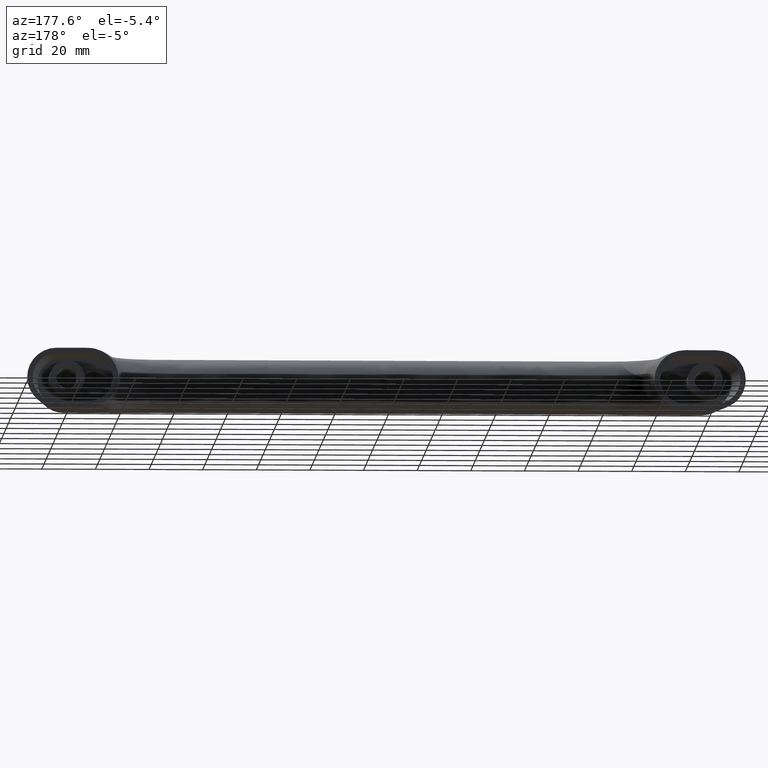
[diagram: clean part render]
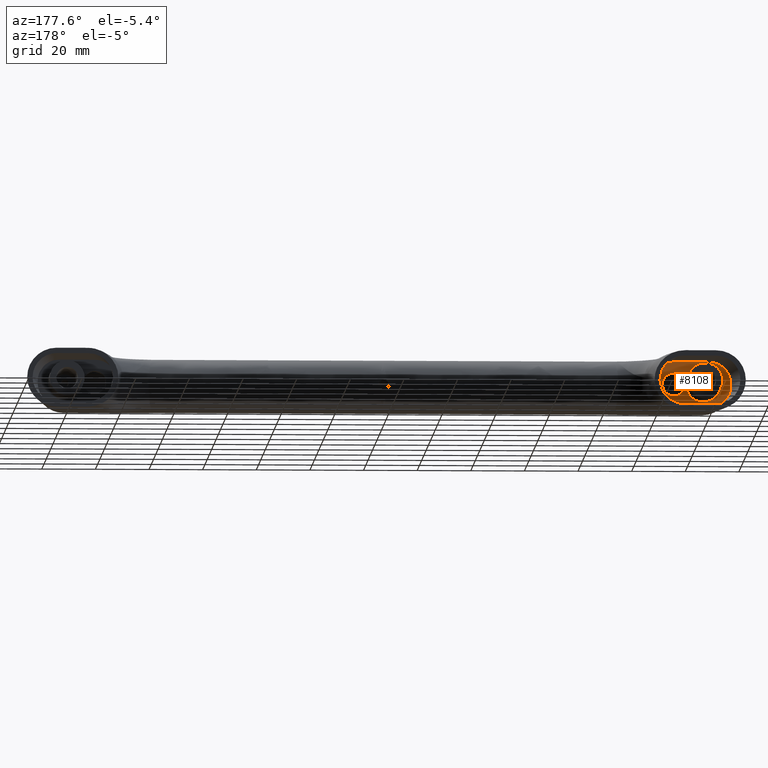
[diagram: same view with one face highlighted and labeled with its STEP entity id]
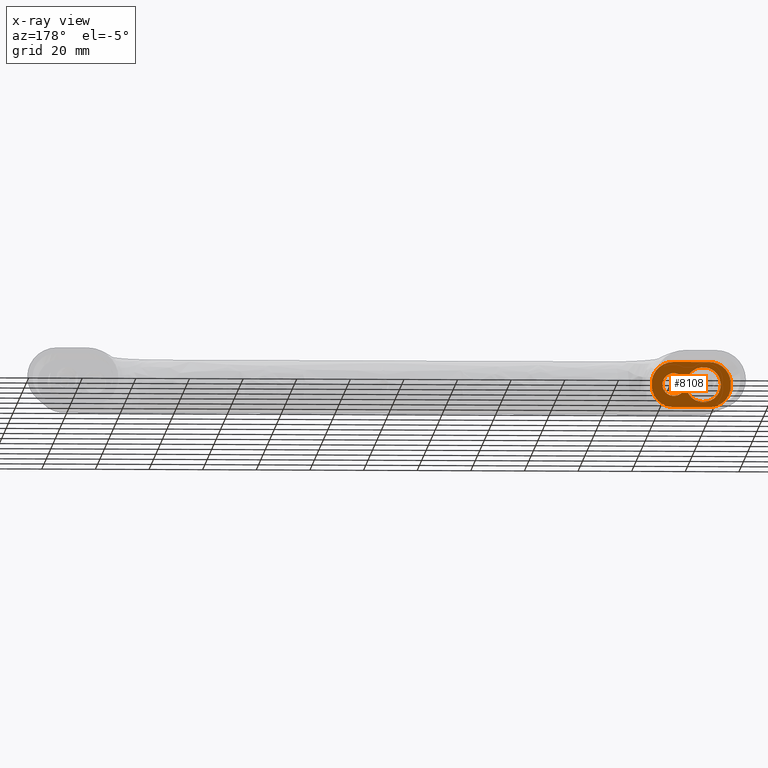
[diagram: x-ray of the same camera — body ghosted, the highlighted face saturated]
A machine part, auxiliary view. The second image highlights one B-rep face of the part: STEP entity #8108.
The next image is the same camera in x-ray: the body ghosted, the highlighted face saturated — about 0% of this face is hidden behind the body in this view.
In plain terms, the highlighted face is a freeform B-spline surface patch.
Its self-contained STEP definition (entity closure, byte-faithful):
#85=CARTESIAN_POINT('',(-119.767222525678510,6.454561921315153,-24.500000000000000));
#86=VERTEX_POINT('',#85);
#92=CARTESIAN_POINT('',(-112.500000000000000,0.0,-24.500000000000000));
#93=VERTEX_POINT('',#92);
#94=CARTESIAN_POINT('',(-119.767222525678410,6.454561921315154,-24.500000000000004));
#95=CARTESIAN_POINT('',(-119.384956778151250,6.500000000000001,-24.499999999999996));
#96=CARTESIAN_POINT('',(-119.0,6.500000000000000,-24.500000000000000));
#97=CARTESIAN_POINT('',(-112.500000000000000,6.500000000000000,-24.499999999999993));
#98=CARTESIAN_POINT('',(-112.500000000000000,0.0,-24.500000000000000));
#106=(BOUNDED_CURVE()B_SPLINE_CURVE(2,(#94,#95,#96,#97,#98),.UNSPECIFIED.,.F.,.U.)B_SPLINE_CURVE_WITH_KNOTS((3,2,3),(0.229562473494199,0.250000000000000,0.500000000000000),.UNSPECIFIED.)CURVE()GEOMETRIC_REPRESENTATION_ITEM()RATIONAL_B_SPLINE_CURVE((0.956026754145852,0.976055948308523,1.0,0.707106781186547,1.0))REPRESENTATION_ITEM(''));
#107=EDGE_CURVE('',#86,#93,#106,.T.);
#109=CARTESIAN_POINT('',(-118.603184491527500,-6.487876189650638,-24.500000000000000));
#110=VERTEX_POINT('',#109);
#111=CARTESIAN_POINT('',(-112.500000000000000,0.0,-24.500000000000000));
#112=CARTESIAN_POINT('',(-112.499999999999990,-6.114589432061973,-24.499999999999996));
#113=CARTESIAN_POINT('',(-118.603184491527490,-6.487876189650638,-24.499999999999996));
#121=(BOUNDED_CURVE()B_SPLINE_CURVE(2,(#111,#112,#113),.UNSPECIFIED.,.F.,.U.)B_SPLINE_CURVE_WITH_KNOTS((3,3),(0.500000000000000,0.739332962162397),.UNSPECIFIED.)CURVE()GEOMETRIC_REPRESENTATION_ITEM()RATIONAL_B_SPLINE_CURVE((1.0,0.719603993376389,0.976072041502666))REPRESENTATION_ITEM(''));
#122=EDGE_CURVE('',#93,#110,#121,.T.);
#196=CARTESIAN_POINT('',(-125.500000000000000,0.0,-24.500000000000000));
#197=VERTEX_POINT('',#196);
#198=CARTESIAN_POINT('',(-118.603184491527440,-6.487876189650638,-24.499999999999996));
#199=CARTESIAN_POINT('',(-118.801407037058990,-6.500000000000000,-24.500000000000004));
#200=CARTESIAN_POINT('',(-119.0,-6.500000000000000,-24.500000000000000));
#201=CARTESIAN_POINT('',(-125.500000000000000,-6.500000000000000,-24.499999999999993));
#202=CARTESIAN_POINT('',(-125.500000000000000,0.0,-24.500000000000000));
#210=(BOUNDED_CURVE()B_SPLINE_CURVE(2,(#198,#199,#200,#201,#202),.UNSPECIFIED.,.F.,.U.)B_SPLINE_CURVE_WITH_KNOTS((3,2,3),(0.739332962162398,0.750000000000000,1.0),.UNSPECIFIED.)CURVE()GEOMETRIC_REPRESENTATION_ITEM()RATIONAL_B_SPLINE_CURVE((0.976072041502668,0.987502787810160,1.0,0.707106781186547,1.0))REPRESENTATION_ITEM(''));
#211=EDGE_CURVE('',#110,#197,#210,.T.);
#213=CARTESIAN_POINT('',(-125.500000000000000,0.0,-24.500000000000000));
#214=CARTESIAN_POINT('',(-125.499999999999970,5.773134417946160,-24.499999999999996));
#215=CARTESIAN_POINT('',(-119.767222525678430,6.454561921315153,-24.500000000000004));
#223=(BOUNDED_CURVE()B_SPLINE_CURVE(2,(#213,#214,#215),.UNSPECIFIED.,.F.,.U.)B_SPLINE_CURVE_WITH_KNOTS((3,3),(0.0,0.229562473494199),.UNSPECIFIED.)CURVE()GEOMETRIC_REPRESENTATION_ITEM()RATIONAL_B_SPLINE_CURVE((1.0,0.731050832878025,0.956026754145852))REPRESENTATION_ITEM(''));
#224=EDGE_CURVE('',#197,#86,#223,.T.);
#1299=CARTESIAN_POINT('',(-108.527544009105500,-4.217131408725232,-24.500000000000000));
#1300=VERTEX_POINT('',#1299);
#1306=CARTESIAN_POINT('',(-112.250000000000000,0.0,-24.500000000000000));
#1307=VERTEX_POINT('',#1306);
#1308=CARTESIAN_POINT('',(-112.250000000000000,0.0,-24.500000000000000));
#1309=CARTESIAN_POINT('',(-112.250000000000000,-3.751469050161035,-24.500000000000000));
#1310=CARTESIAN_POINT('',(-108.527544009105510,-4.217131408725232,-24.500000000000004));
#1318=(BOUNDED_CURVE()B_SPLINE_CURVE(2,(#1308,#1309,#1310),.UNSPECIFIED.,.F.,.U.)B_SPLINE_CURVE_WITH_KNOTS((3,3),(0.500000000000000,0.728526071008002),.UNSPECIFIED.)CURVE()GEOMETRIC_REPRESENTATION_ITEM()RATIONAL_B_SPLINE_CURVE((1.0,0.732265053918699,0.954005430233389))REPRESENTATION_ITEM(''));
#1319=EDGE_CURVE('',#1307,#1300,#1318,.T.);
#1321=CARTESIAN_POINT('',(-107.962912222301990,4.249838173006759,-24.500000000000000));
#1322=VERTEX_POINT('',#1321);
#1323=CARTESIAN_POINT('',(-107.962912222302040,4.249838173006759,-24.499999999999996));
#1324=CARTESIAN_POINT('',(-107.981455757182050,4.250000000000000,-24.500000000000004));
#1325=CARTESIAN_POINT('',(-108.0,4.250000000000000,-24.500000000000000));
#1326=CARTESIAN_POINT('',(-112.250000000000000,4.249999999999999,-24.500000000000004));
#1327=CARTESIAN_POINT('',(-112.250000000000000,0.0,-24.500000000000000));
#1335=(BOUNDED_CURVE()B_SPLINE_CURVE(2,(#1323,#1324,#1325,#1326,#1327),.UNSPECIFIED.,.F.,.U.)B_SPLINE_CURVE_WITH_KNOTS((3,2,3),(0.248460105513327,0.250000000000000,0.500000000000000),.UNSPECIFIED.)CURVE()GEOMETRIC_REPRESENTATION_ITEM()RATIONAL_B_SPLINE_CURVE((0.996414027749363,0.998195901388661,1.0,0.707106781186548,1.0))REPRESENTATION_ITEM(''));
#1336=EDGE_CURVE('',#1322,#1307,#1335,.T.);
#1416=CARTESIAN_POINT('',(-103.750000000000000,0.0,-24.500000000000000));
#1417=VERTEX_POINT('',#1416);
#1418=CARTESIAN_POINT('',(-103.750000000000000,0.0,-24.500000000000000));
#1419=CARTESIAN_POINT('',(-103.750000000000000,4.213072641400427,-24.500000000000000));
#1420=CARTESIAN_POINT('',(-107.962912222302050,4.249838173006759,-24.500000000000000));
#1428=(BOUNDED_CURVE()B_SPLINE_CURVE(2,(#1418,#1419,#1420),.UNSPECIFIED.,.F.,.U.)B_SPLINE_CURVE_WITH_KNOTS((3,3),(0.0,0.248460105513327),.UNSPECIFIED.)CURVE()GEOMETRIC_REPRESENTATION_ITEM()RATIONAL_B_SPLINE_CURVE((1.0,0.708910879797886,0.996414027749363))REPRESENTATION_ITEM(''));
#1429=EDGE_CURVE('',#1417,#1322,#1428,.T.);
#1431=CARTESIAN_POINT('',(-108.527544009105530,-4.217131408725232,-24.499999999999996));
#1432=CARTESIAN_POINT('',(-108.264795942286770,-4.250000000000000,-24.500000000000004));
#1433=CARTESIAN_POINT('',(-108.0,-4.250000000000000,-24.500000000000000));
#1434=CARTESIAN_POINT('',(-103.750000000000000,-4.249999999999999,-24.500000000000004));
#1435=CARTESIAN_POINT('',(-103.750000000000000,0.0,-24.500000000000000));
#1443=(BOUNDED_CURVE()B_SPLINE_CURVE(2,(#1431,#1432,#1433,#1434,#1435),.UNSPECIFIED.,.F.,.U.)B_SPLINE_CURVE_WITH_KNOTS((3,2,3),(0.728526071008003,0.750000000000000,1.0),.UNSPECIFIED.)CURVE()GEOMETRIC_REPRESENTATION_ITEM()RATIONAL_B_SPLINE_CURVE((0.954005430233391,0.974841727267850,1.0,0.707106781186548,1.0))REPRESENTATION_ITEM(''));
#1444=EDGE_CURVE('',#1300,#1417,#1443,.T.);
#7100=CARTESIAN_POINT('',(-107.880731201029600,-8.451829409772959,-24.500000000000000));
#7101=VERTEX_POINT('',#7100);
#7112=CARTESIAN_POINT('',(-99.748624377972405,-0.424159797873580,-24.500000000000000));
#7113=VERTEX_POINT('',#7112);
#7114=CARTESIAN_POINT('',(-99.748624377972305,-0.424159797873613,-24.500000000000000));
#7115=CARTESIAN_POINT('',(-99.748624377972348,-0.957715731302908,-24.500000000000000));
#7116=CARTESIAN_POINT('',(-99.801913300520667,-1.482186644505786,-24.500000000000021));
#7117=CARTESIAN_POINT('',(-99.958462131922161,-2.255831145958679,-24.500000000000021));
#7118=CARTESIAN_POINT('',(-100.023510249037700,-2.511519313303670,-24.500000000000011));
#7119=CARTESIAN_POINT('',(-100.121270316988100,-2.828325039622185,-24.500000000000011));
#7120=CARTESIAN_POINT('',(-100.141646743529610,-2.891545633942450,-24.500000000000000));
#7121=CARTESIAN_POINT('',(-100.184065541758400,-3.017702802103274,-24.499999999999989));
#7122=CARTESIAN_POINT('',(-100.206136069711500,-3.080711933267160,-24.500000000000000));
#7123=CARTESIAN_POINT('',(-100.274510350259310,-3.268329254087642,-24.500000000000000));
#7124=CARTESIAN_POINT('',(-100.323048959441910,-3.391771911158735,-24.499999999999979));
#7125=CARTESIAN_POINT('',(-100.580214750905990,-4.000976754116508,-24.499999999999979));
#7126=CARTESIAN_POINT('',(-100.831846115044500,-4.462942728563198,-24.500000000000011));
#7127=CARTESIAN_POINT('',(-101.203176886666990,-5.008974784838732,-24.500000000000000));
#7128=CARTESIAN_POINT('',(-101.280308327891210,-5.116595699754702,-24.499999999999989));
#7129=CARTESIAN_POINT('',(-101.440392117931400,-5.328616551024905,-24.500000000000000));
#7130=CARTESIAN_POINT('',(-101.523549192564100,-5.433241794855532,-24.499999999999989));
#7131=CARTESIAN_POINT('',(-101.779255289578000,-5.739061235806164,-24.499999999999979));
#7132=CARTESIAN_POINT('',(-101.958585372454490,-5.933063549646109,-24.499999999999989));
#7133=CARTESIAN_POINT('',(-102.522326018636410,-6.486361307725264,-24.499999999999989));
#7134=CARTESIAN_POINT('',(-102.932243996362000,-6.817218471032617,-24.499999999999989));
#7135=CARTESIAN_POINT('',(-103.488267671728290,-7.182150960730660,-24.500000000000000));
#7136=CARTESIAN_POINT('',(-103.601670514740600,-7.252653353039189,-24.499999999999989));
#7137=CARTESIAN_POINT('',(-103.830399973630610,-7.387222939199484,-24.500000000000000));
#7138=CARTESIAN_POINT('',(-103.946030640252900,-7.451496332792120,-24.499999999999989));
#7139=CARTESIAN_POINT('',(-104.296653624640000,-7.635441282577079,-24.499999999999989));
#7140=CARTESIAN_POINT('',(-104.774082843860400,-7.857075289082281,-24.500000000000011));
#7141=CARTESIAN_POINT('',(-105.271103442076000,-8.032105506931671,-24.500000000000000));
#7142=CARTESIAN_POINT('',(-105.651323978752200,-8.145644076852406,-24.500000000000011));
#7143=CARTESIAN_POINT('',(-105.779308851375110,-8.180529401050039,-24.500000000000000));
#7144=CARTESIAN_POINT('',(-106.037813665258800,-8.244269651939543,-24.500000000000000));
#7145=CARTESIAN_POINT('',(-106.168073593295800,-8.273045201098046,-24.500000000000011));
#7146=CARTESIAN_POINT('',(-106.819954503555910,-8.400583916414711,-24.500000000000011));
#7147=CARTESIAN_POINT('',(-107.347363817552700,-8.451829409772978,-24.499999999999989));
#7148=CARTESIAN_POINT('',(-107.880731201029600,-8.451829409772978,-24.500000000000000));
#7149=B_SPLINE_CURVE_WITH_KNOTS('',3,(#7114,#7115,#7116,#7117,#7118,#7119,#7120,#7121,#7122,#7123,#7124,#7125,#7126,#7127,#7128,#7129,#7130,#7131,#7132,#7133,#7134,#7135,#7136,#7137,#7138,#7139,#7140,#7141,#7142,#7143,#7144,#7145,#7146,#7147,#7148),.UNSPECIFIED.,.F.,.U.,(4,2,2,2,2,2,2,2,2,2,2,2,2,1,2,2,2,4),(0.0,0.125000000000002,0.187500000000002,0.203125000000002,0.218750000000001,0.250000000000000,0.374999999999995,0.406249999999993,0.437499999999992,0.499999999999991,0.624999999999989,0.656249999999990,0.687499999999991,0.749999999999993,0.812499999999995,0.843749999999996,0.874999999999997,1.0),.UNSPECIFIED.);
#7150=EDGE_CURVE('',#7113,#7101,#7149,.T.);
#7203=CARTESIAN_POINT('',(-121.250892499179400,-8.451829409772959,-24.500000000000000));
#7204=VERTEX_POINT('',#7203);
#7205=CARTESIAN_POINT('',(-129.241596137849000,-0.489251331862173,-24.500000000000000));
#7206=VERTEX_POINT('',#7205);
#7207=CARTESIAN_POINT('',(-121.250892499179400,-8.451829409772881,-24.500000000000000));
#7208=CARTESIAN_POINT('',(-121.777736400575710,-8.451829409772882,-24.500000000000011));
#7209=CARTESIAN_POINT('',(-122.294844399519900,-8.400203320150704,-24.500000000000011));
#7210=CARTESIAN_POINT('',(-123.056675858210800,-8.249425665032238,-24.500000000000011));
#7211=CARTESIAN_POINT('',(-123.308296925022800,-8.186849700234161,-24.499999999999989));
#7212=CARTESIAN_POINT('',(-123.682187512135000,-8.074208997533008,-24.499999999999989));
#7213=CARTESIAN_POINT('',(-123.806226493825700,-8.033527095250275,-24.500000000000011));
#7214=CARTESIAN_POINT('',(-124.053099248251900,-7.945772488617432,-24.500000000000000));
#7215=CARTESIAN_POINT('',(-124.176285568810000,-7.898546291224747,-24.500000000000011));
#7216=CARTESIAN_POINT('',(-124.783401006472200,-7.648447874615446,-24.500000000000000));
#7217=CARTESIAN_POINT('',(-125.242432604153390,-7.404001278697091,-24.500000000000082));
#7218=CARTESIAN_POINT('',(-125.892198985761890,-6.972793418545658,-24.500000000000082));
#7219=CARTESIAN_POINT('',(-126.102277277682800,-6.818222922638573,-24.500000000000000));
#7220=CARTESIAN_POINT('',(-126.407349522482600,-6.569650330758964,-24.500000000000000));
#7221=CARTESIAN_POINT('',(-126.507580998028400,-6.483788746987493,-24.499999999999989));
#7222=CARTESIAN_POINT('',(-126.702620164765900,-6.308190875206121,-24.500000000000000));
#7223=CARTESIAN_POINT('',(-126.797628572402100,-6.218310394294887,-24.500000000000011));
#7224=CARTESIAN_POINT('',(-127.260331833963900,-5.758680223238735,-24.500000000000000));
#7225=CARTESIAN_POINT('',(-127.591363467220300,-5.358539930224008,-24.500000000000028));
#7226=CARTESIAN_POINT('',(-127.956084812378800,-4.817691321303287,-24.500000000000021));
#7227=CARTESIAN_POINT('',(-128.026553557230100,-4.707469606516572,-24.500000000000011));
#7228=CARTESIAN_POINT('',(-128.162444642118490,-4.482843148779741,-24.500000000000011));
#7229=CARTESIAN_POINT('',(-128.227938404114700,-4.368268173873398,-24.500000000000011));
#7230=CARTESIAN_POINT('',(-128.414659056402800,-4.022010978306555,-24.500000000000000));
#7231=CARTESIAN_POINT('',(-128.526891136670600,-3.786654494873780,-24.499999999999989));
#7232=CARTESIAN_POINT('',(-128.827771888536890,-3.067372900637941,-24.499999999999989));
#7233=CARTESIAN_POINT('',(-128.980955673450410,-2.570364981209055,-24.500000000000011));
#7234=CARTESIAN_POINT('',(-129.110989788885090,-1.926438120138031,-24.500000000000000));
#7235=CARTESIAN_POINT('',(-129.133870840940800,-1.796538971199145,-24.499999999999989));
#7236=CARTESIAN_POINT('',(-129.172991098629690,-1.536700681548417,-24.500000000000000));
#7237=CARTESIAN_POINT('',(-129.189291169703690,-1.406481181071970,-24.500000000000011));
#7238=CARTESIAN_POINT('',(-129.228451462245910,-1.014925321244957,-24.500000000000011));
#7239=CARTESIAN_POINT('',(-129.241596137849090,-0.752693849197164,-24.500000000000000));
#7240=CARTESIAN_POINT('',(-129.241596137849000,-0.489251331862156,-24.500000000000000));
#7241=B_SPLINE_CURVE_WITH_KNOTS('',3,(#7207,#7208,#7209,#7210,#7211,#7212,#7213,#7214,#7215,#7216,#7217,#7218,#7219,#7220,#7221,#7222,#7223,#7224,#7225,#7226,#7227,#7228,#7229,#7230,#7231,#7232,#7233,#7234,#7235,#7236,#7237,#7238,#7239,#7240),.UNSPECIFIED.,.F.,.U.,(4,2,2,2,2,2,2,2,2,2,2,2,2,2,2,2,4),(0.0,0.124999999999999,0.187499999999996,0.218749999999995,0.249999999999994,0.374999999999996,0.437500000000000,0.468749999999999,0.499999999999998,0.625000000000005,0.656250000000005,0.687500000000004,0.750000000000003,0.875000000000002,0.906250000000002,0.937500000000001,1.0),.UNSPECIFIED.);
#7242=EDGE_CURVE('',#7204,#7206,#7241,.T.);
#7345=CARTESIAN_POINT('',(-129.241596137849000,0.489251331862284,-24.500000000000000));
#7346=VERTEX_POINT('',#7345);
#7347=CARTESIAN_POINT('',(-121.250892499179400,8.451829409772959,-24.500000000000000));
#7348=VERTEX_POINT('',#7347);
#7349=CARTESIAN_POINT('',(-129.241596137849000,0.489251331862235,-24.500000000000000));
#7350=CARTESIAN_POINT('',(-129.241596137849090,1.015850952199768,-24.500000000000000));
#7351=CARTESIAN_POINT('',(-129.189467310316100,1.533559886335435,-24.500000000000011));
#7352=CARTESIAN_POINT('',(-129.036498468362510,2.297370144365743,-24.500000000000011));
#7353=CARTESIAN_POINT('',(-128.972952119767710,2.549831985000743,-24.500000000000028));
#7354=CARTESIAN_POINT('',(-128.858388132443200,2.925242560212863,-24.500000000000021));
#7355=CARTESIAN_POINT('',(-128.816891552704900,3.050091652355582,-24.499999999999989));
#7356=CARTESIAN_POINT('',(-128.727772874871110,3.297455736273158,-24.499999999999979));
#7357=CARTESIAN_POINT('',(-128.680322962370410,3.419537831060232,-24.500000000000011));
#7358=CARTESIAN_POINT('',(-128.428920706278400,4.022114717154437,-24.500000000000011));
#7359=CARTESIAN_POINT('',(-128.182915495882610,4.479333032925927,-24.500000000000011));
#7360=CARTESIAN_POINT('',(-127.819884051422090,5.020122595834672,-24.500000000000021));
#7361=CARTESIAN_POINT('',(-127.744476359324910,5.126729917502541,-24.499999999999989));
#7362=CARTESIAN_POINT('',(-127.587970041339600,5.336794600057504,-24.499999999999989));
#7363=CARTESIAN_POINT('',(-127.506632730696500,5.440532035221357,-24.500000000000011));
#7364=CARTESIAN_POINT('',(-127.256020606114210,5.744376442884619,-24.500000000000011));
#7365=CARTESIAN_POINT('',(-127.080235120675890,5.937197411654364,-24.499999999999989));
#7366=CARTESIAN_POINT('',(-126.527555202403800,6.487338898692133,-24.499999999999989));
#7367=CARTESIAN_POINT('',(-126.125577971169090,6.816607152574026,-24.500000000000021));
#7368=CARTESIAN_POINT('',(-125.580167587766700,7.180170243891051,-24.500000000000028));
#7369=CARTESIAN_POINT('',(-125.468648117935300,7.250608152996185,-24.500000000000011));
#7370=CARTESIAN_POINT('',(-125.243491568301000,7.385184253010112,-24.500000000000000));
#7371=CARTESIAN_POINT('',(-125.129666146396700,7.449466355295183,-24.500000000000000));
#7372=CARTESIAN_POINT('',(-124.784515101614100,7.633455492144878,-24.500000000000011));
#7373=CARTESIAN_POINT('',(-124.314531638879800,7.855197017957777,-24.500000000000050));
#7374=CARTESIAN_POINT('',(-123.825255520497710,8.030438243292940,-24.500000000000011));
#7375=CARTESIAN_POINT('',(-123.450955499944600,8.144170793559406,-24.500000000000011));
#7376=CARTESIAN_POINT('',(-123.324962830638800,8.179126676039278,-24.499999999999989));
#7377=CARTESIAN_POINT('',(-123.070479887073800,8.243018565719554,-24.500000000000000));
#7378=CARTESIAN_POINT('',(-122.941836042167910,8.271970275503627,-24.499999999999989));
#7379=CARTESIAN_POINT('',(-122.298147093133810,8.400249605248975,-24.499999999999989));
#7380=CARTESIAN_POINT('',(-121.777432022794500,8.451829409772959,-24.500000000000000));
#7381=CARTESIAN_POINT('',(-121.250892499179400,8.451829409772959,-24.500000000000000));
#7382=B_SPLINE_CURVE_WITH_KNOTS('',3,(#7349,#7350,#7351,#7352,#7353,#7354,#7355,#7356,#7357,#7358,#7359,#7360,#7361,#7362,#7363,#7364,#7365,#7366,#7367,#7368,#7369,#7370,#7371,#7372,#7373,#7374,#7375,#7376,#7377,#7378,#7379,#7380,#7381),.UNSPECIFIED.,.F.,.U.,(4,2,2,2,2,2,2,2,2,2,2,2,1,2,2,2,4),(0.0,0.125000000000000,0.187500000000000,0.218750000000000,0.250000000000000,0.375000000000005,0.406250000000006,0.437500000000008,0.500000000000010,0.625000000000020,0.656250000000021,0.687500000000022,0.750000000000018,0.812500000000015,0.843750000000013,0.875000000000011,1.0),.UNSPECIFIED.);
#7383=EDGE_CURVE('',#7346,#7348,#7382,.T.);
#7540=CARTESIAN_POINT('',(-99.748624377972405,0.424159797873580,-24.500000000000000));
#7541=VERTEX_POINT('',#7540);
#7549=CARTESIAN_POINT('',(-107.880731201029800,8.451829409772959,-24.500000000000000));
#7550=VERTEX_POINT('',#7549);
#7551=CARTESIAN_POINT('',(-107.880731201029800,8.451829409772959,-24.500000000000000));
#7552=CARTESIAN_POINT('',(-107.347028912574900,8.451829409772959,-24.500000000000000));
#7553=CARTESIAN_POINT('',(-106.822802821824000,8.400529487182730,-24.500000000000011));
#7554=CARTESIAN_POINT('',(-106.050010308921300,8.250244206079906,-24.500000000000011));
#7555=CARTESIAN_POINT('',(-105.794687330897900,8.187835838045787,-24.500000000000000));
#7556=CARTESIAN_POINT('',(-105.415178639448600,8.075406981811456,-24.499999999999989));
#7557=CARTESIAN_POINT('',(-105.289256051330100,8.034789161228572,-24.500000000000000));
#7558=CARTESIAN_POINT('',(-105.038595114894410,7.947142572124262,-24.500000000000000));
#7559=CARTESIAN_POINT('',(-104.913513606004600,7.899965204866044,-24.500000000000011));
#7560=CARTESIAN_POINT('',(-104.297137624350200,7.650125414195959,-24.500000000000021));
#7561=CARTESIAN_POINT('',(-103.830545174554400,7.405599898779354,-24.499999999999989));
#7562=CARTESIAN_POINT('',(-103.169444850982700,6.973472075057360,-24.499999999999989));
#7563=CARTESIAN_POINT('',(-102.955588774981810,6.818462099286785,-24.499999999999989));
#7564=CARTESIAN_POINT('',(-102.644875588436190,6.568982509524871,-24.500000000000000));
#7565=CARTESIAN_POINT('',(-102.542717022231500,6.482739680467246,-24.499999999999989));
#7566=CARTESIAN_POINT('',(-102.343717790064900,6.306136491446730,-24.499999999999989));
#7567=CARTESIAN_POINT('',(-102.246767600393300,6.215714540961685,-24.499999999999989));
#7568=CARTESIAN_POINT('',(-101.774550497200200,5.753180399206381,-24.499999999999989));
#7569=CARTESIAN_POINT('',(-101.436527590635710,5.350092396155142,-24.499999999999979));
#7570=CARTESIAN_POINT('',(-101.063940459975500,4.804696083299408,-24.499999999999972));
#7571=CARTESIAN_POINT('',(-100.991942528006010,4.693521359381865,-24.500000000000011));
#7572=CARTESIAN_POINT('',(-100.853084910770410,4.466898435737612,-24.500000000000028));
#7573=CARTESIAN_POINT('',(-100.786075294701010,4.351151138598394,-24.500000000000021));
#7574=CARTESIAN_POINT('',(-100.594890864812900,4.000997631477709,-24.500000000000011));
#7575=CARTESIAN_POINT('',(-100.480000880712100,3.762944005245481,-24.500000000000011));
#7576=CARTESIAN_POINT('',(-100.172042479926500,3.035292102730193,-24.500000000000021));
#7577=CARTESIAN_POINT('',(-100.015327609427700,2.532334364990985,-24.500000000000000));
#7578=CARTESIAN_POINT('',(-99.882305040198375,1.880532900615987,-24.499999999999989));
#7579=CARTESIAN_POINT('',(-99.858873927071500,1.748903851779652,-24.499999999999989));
#7580=CARTESIAN_POINT('',(-99.818822906265012,1.485592725198622,-24.499999999999979));
#7581=CARTESIAN_POINT('',(-99.802139324262953,1.353633123821694,-24.499999999999911));
#7582=CARTESIAN_POINT('',(-99.762064517504626,0.956846740258200,-24.499999999999901));
#7583=CARTESIAN_POINT('',(-99.748624377972433,0.691114639780018,-24.500000000000011));
#7584=CARTESIAN_POINT('',(-99.748624377972405,0.424159797873599,-24.500000000000000));
#7585=B_SPLINE_CURVE_WITH_KNOTS('',3,(#7551,#7552,#7553,#7554,#7555,#7556,#7557,#7558,#7559,#7560,#7561,#7562,#7563,#7564,#7565,#7566,#7567,#7568,#7569,#7570,#7571,#7572,#7573,#7574,#7575,#7576,#7577,#7578,#7579,#7580,#7581,#7582,#7583,#7584),.UNSPECIFIED.,.F.,.U.,(4,2,2,2,2,2,2,2,2,2,2,2,2,2,2,2,4),(0.0,0.124999999999995,0.187499999999990,0.218749999999990,0.249999999999989,0.374999999999993,0.437499999999995,0.468749999999994,0.499999999999994,0.624999999999997,0.656249999999997,0.687499999999996,0.749999999999997,0.874999999999998,0.906249999999999,0.937499999999999,1.0),.UNSPECIFIED.);
#7586=EDGE_CURVE('',#7550,#7541,#7585,.T.);
#8017=CARTESIAN_POINT('',(-107.880731201029600,-8.451829409772959,-24.500000000000000));
#8018=CARTESIAN_POINT('',(-121.250892499179400,-8.451829409772959,-24.500000000000000));
#8019=QUASI_UNIFORM_CURVE('',1,(#8017,#8018),.UNSPECIFIED.,.F.,.U.);
#8020=EDGE_CURVE('',#7101,#7204,#8019,.T.);
#8037=CARTESIAN_POINT('',(-107.880731201029800,8.451829409772959,-24.500000000000000));
#8038=CARTESIAN_POINT('',(-121.250892499179400,8.451829409772959,-24.500000000000000));
#8039=QUASI_UNIFORM_CURVE('',1,(#8037,#8038),.UNSPECIFIED.,.F.,.U.);
#8040=EDGE_CURVE('',#7550,#7348,#8039,.T.);
#8053=CARTESIAN_POINT('',(-99.748624377972405,0.424159797873580,-24.500000000000000));
#8054=CARTESIAN_POINT('',(-99.748624377972405,-0.424159797873580,-24.500000000000000));
#8055=QUASI_UNIFORM_CURVE('',1,(#8053,#8054),.UNSPECIFIED.,.F.,.U.);
#8056=EDGE_CURVE('',#7541,#7113,#8055,.T.);
#8066=CARTESIAN_POINT('',(-129.241596137849000,0.489251331862284,-24.500000000000000));
#8067=CARTESIAN_POINT('',(-129.241596137849000,-0.489251331862173,-24.500000000000000));
#8068=QUASI_UNIFORM_CURVE('',1,(#8066,#8067),.UNSPECIFIED.,.F.,.U.);
#8069=EDGE_CURVE('',#7346,#7206,#8068,.T.);
#8081=CARTESIAN_POINT('',(-130.714766038697290,-9.296166598616601,-24.500000000000000));
#8082=CARTESIAN_POINT('',(-98.275452103934668,-9.296166598616601,-24.500000000000000));
#8083=CARTESIAN_POINT('',(-130.714766038697290,9.296166296355626,-24.500000000000000));
#8084=CARTESIAN_POINT('',(-98.275452103934668,9.296166296355626,-24.500000000000000));
#8085=B_SPLINE_SURFACE_WITH_KNOTS('',1,1,((#8081,#8083),(#8082,#8084)),.UNSPECIFIED.,.F.,.F.,.U.,(2,2),(2,2),(0.0,32.439313934762602),(0.0,18.592332894972230),.UNSPECIFIED.);
#8086=ORIENTED_EDGE('',*,*,#8020,.T.);
#8087=ORIENTED_EDGE('',*,*,#7242,.T.);
#8088=ORIENTED_EDGE('',*,*,#8069,.F.);
#8089=ORIENTED_EDGE('',*,*,#7383,.T.);
#8090=ORIENTED_EDGE('',*,*,#8040,.F.);
#8091=ORIENTED_EDGE('',*,*,#7586,.T.);
#8092=ORIENTED_EDGE('',*,*,#8056,.T.);
#8093=ORIENTED_EDGE('',*,*,#7150,.T.);
#8094=EDGE_LOOP('',(#8086,#8087,#8088,#8089,#8090,#8091,#8092,#8093));
#8095=FACE_OUTER_BOUND('',#8094,.T.);
#8096=ORIENTED_EDGE('',*,*,#1429,.T.);
#8097=ORIENTED_EDGE('',*,*,#1336,.T.);
#8098=ORIENTED_EDGE('',*,*,#1319,.T.);
#8099=ORIENTED_EDGE('',*,*,#1444,.T.);
#8100=EDGE_LOOP('',(#8096,#8097,#8098,#8099));
#8101=FACE_BOUND('',#8100,.T.);
#8102=ORIENTED_EDGE('',*,*,#122,.F.);
#8103=ORIENTED_EDGE('',*,*,#107,.F.);
#8104=ORIENTED_EDGE('',*,*,#224,.F.);
#8105=ORIENTED_EDGE('',*,*,#211,.F.);
#8106=EDGE_LOOP('',(#8102,#8103,#8104,#8105));
#8107=FACE_BOUND('',#8106,.T.);
#8108=ADVANCED_FACE('',(#8095,#8101,#8107),#8085,.F.);